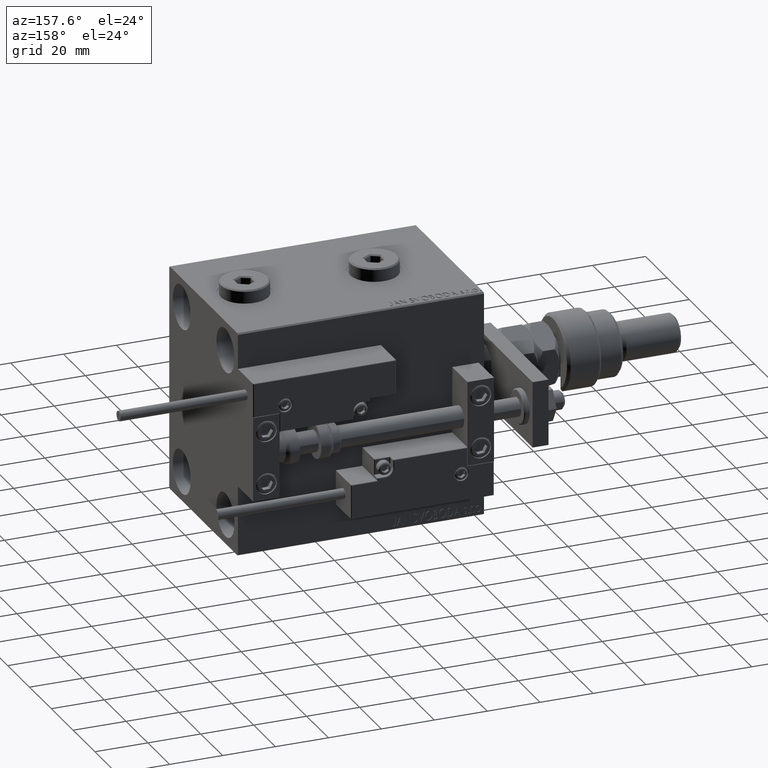
[diagram: clean part render]
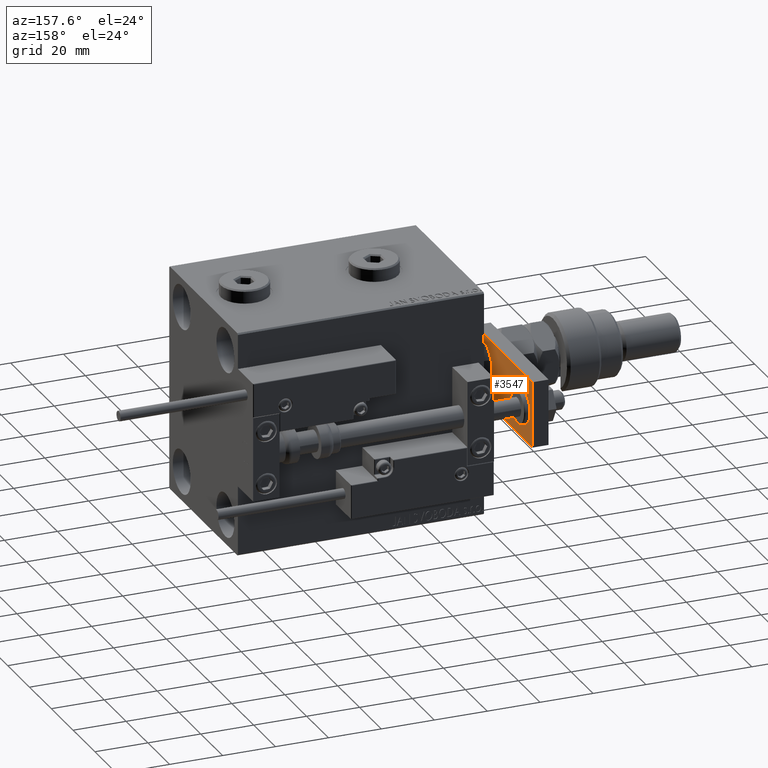
[diagram: same view with one face highlighted and labeled with its STEP entity id]
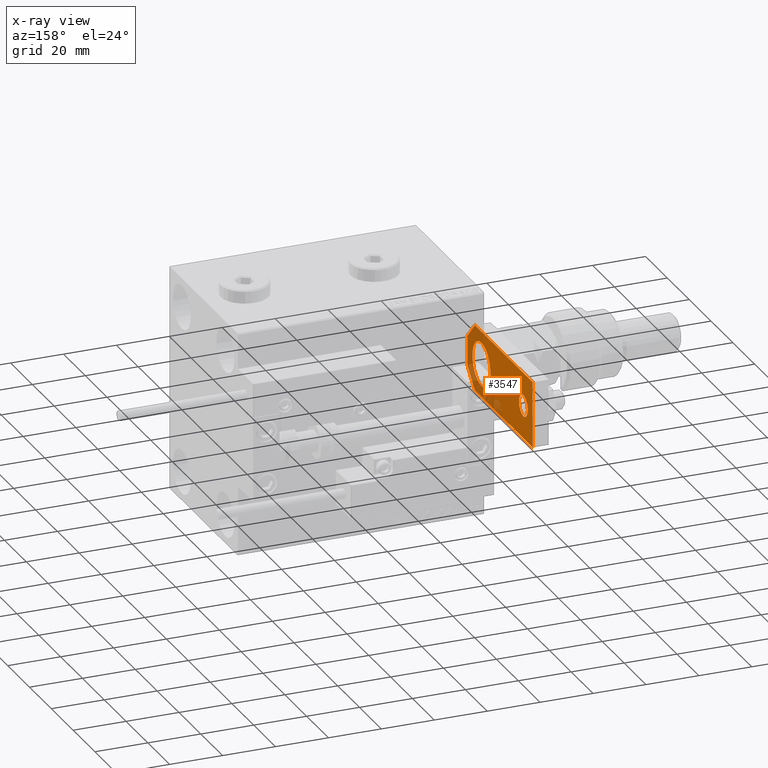
[diagram: x-ray of the same camera — body ghosted, the highlighted face saturated]
A machine part, auxiliary view. The second image highlights one B-rep face of the part: STEP entity #3547.
The next image is the same camera in x-ray: the body ghosted, the highlighted face saturated — about 25% of this face is hidden behind the body in this view.
In plain terms, the highlighted planar face has unit normal (-1, 0, 0).
Its self-contained STEP definition (entity closure, byte-faithful):
#515 = VERTEX_POINT ( 'NONE', #52405 ) ;
#2166 = EDGE_LOOP ( 'NONE', ( #26805, #9328, #3336, #47118, #18112, #44741 ) ) ;
#3336 = ORIENTED_EDGE ( 'NONE', *, *, #50864, .F. ) ;
#3547 = ADVANCED_FACE ( 'NONE', ( #32442, #49216, #45920 ), #45107, .F. ) ;
#3805 = EDGE_CURVE ( 'NONE', #45711, #31554, #12297, .T. ) ;
#5051 = ORIENTED_EDGE ( 'NONE', *, *, #52866, .T. ) ;
#7427 = DIRECTION ( 'NONE',  ( -0.000000000000000000, 0.000000000000000000, 1.000000000000000000 ) ) ;
#9328 = ORIENTED_EDGE ( 'NONE', *, *, #41996, .T. ) ;
#9504 = VERTEX_POINT ( 'NONE', #36668 ) ;
#10548 = LINE ( 'NONE', #18277, #44268 ) ;
#10897 = CARTESIAN_POINT ( 'NONE',  ( -1.432611055310774642E-16, 51.50000000000000000, 0.000000000000000000 ) ) ;
#11584 = LINE ( 'NONE', #49535, #14589 ) ;
#12059 = ORIENTED_EDGE ( 'NONE', *, *, #48016, .T. ) ;
#12297 = LINE ( 'NONE', #50241, #49398 ) ;
#12738 = DIRECTION ( 'NONE',  ( 1.000000000000000000, 0.000000000000000000, 0.000000000000000000 ) ) ;
#13822 = CIRCLE ( 'NONE', #21763, 4.000000000000000888 ) ;
#13922 = VERTEX_POINT ( 'NONE', #42228 ) ;
#14086 = CARTESIAN_POINT ( 'NONE',  ( 5.499999999999976907, 4.814824860968089633E-32, 0.000000000000000000 ) ) ;
#14195 = DIRECTION ( 'NONE',  ( -8.673617379884035472E-17, -1.000000000000000000, 0.000000000000000000 ) ) ;
#14589 = VECTOR ( 'NONE', #53097, 1000.000000000000000 ) ;
#14947 = DIRECTION ( 'NONE',  ( 1.000000000000000000, 0.000000000000000000, 0.000000000000000000 ) ) ;
#15524 = AXIS2_PLACEMENT_3D ( 'NONE', #27617, #48242, #14947 ) ;
#15602 = CIRCLE ( 'NONE', #34950, 4.000000000000000888 ) ;
#15713 = CARTESIAN_POINT ( 'NONE',  ( 4.000000000000000888, 51.50000000000000000, 0.000000000000000000 ) ) ;
#15844 = AXIS2_PLACEMENT_3D ( 'NONE', #22597, #39616, #23120 ) ;
#17602 = CARTESIAN_POINT ( 'NONE',  ( 12.50000000000000355, 60.00000000000000000, 0.000000000000000000 ) ) ;
#18112 = ORIENTED_EDGE ( 'NONE', *, *, #3805, .F. ) ;
#18277 = CARTESIAN_POINT ( 'NONE',  ( -5.500000000000010658, 4.814824860968089633E-32, 0.000000000000000000 ) ) ;
#19127 = CARTESIAN_POINT ( 'NONE',  ( -12.49999999999999822, 60.00000000000000000, 0.000000000000000000 ) ) ;
#19277 = EDGE_CURVE ( 'NONE', #515, #52969, #11584, .T. ) ;
#19778 = VERTEX_POINT ( 'NONE', #40661 ) ;
#21763 = AXIS2_PLACEMENT_3D ( 'NONE', #10897, #34858, #35122 ) ;
#22597 = CARTESIAN_POINT ( 'NONE',  ( -9.629649721936179265E-32, 12.99999999999999822, 0.000000000000000000 ) ) ;
#23120 = DIRECTION ( 'NONE',  ( 1.000000000000000000, 0.000000000000000000, 0.000000000000000000 ) ) ;
#24396 = VECTOR ( 'NONE', #48074, 999.9999999999998863 ) ;
#26182 = EDGE_LOOP ( 'NONE', ( #51524, #12059 ) ) ;
#26805 = ORIENTED_EDGE ( 'NONE', *, *, #19277, .F. ) ;
#26838 = CARTESIAN_POINT ( 'NONE',  ( -12.50000000000000355, 7.000000000000013323, 0.000000000000000000 ) ) ;
#27617 = CARTESIAN_POINT ( 'NONE',  ( -9.629649721936179265E-32, 12.99999999999999822, 0.000000000000000000 ) ) ;
#27782 = CIRCLE ( 'NONE', #15524, 8.250000000000000000 ) ;
#28929 = VERTEX_POINT ( 'NONE', #50292 ) ;
#29555 = VECTOR ( 'NONE', #14195, 1000.000000000000000 ) ;
#30292 = EDGE_CURVE ( 'NONE', #19778, #9504, #48299, .T. ) ;
#30378 = ORIENTED_EDGE ( 'NONE', *, *, #52126, .T. ) ;
#30506 = LINE ( 'NONE', #47553, #24396 ) ;
#31440 = DIRECTION ( 'NONE',  ( -1.000000000000000000, 0.000000000000000000, 0.000000000000000000 ) ) ;
#31554 = VERTEX_POINT ( 'NONE', #17602 ) ;
#31607 = CARTESIAN_POINT ( 'NONE',  ( 12.50000000000000355, 7.000000000000006217, 0.000000000000000000 ) ) ;
#32442 = FACE_OUTER_BOUND ( 'NONE', #2166, .T. ) ;
#32984 = CARTESIAN_POINT ( 'NONE',  ( 0.000000000000000000, 0.000000000000000000, 0.000000000000000000 ) ) ;
#33088 = CARTESIAN_POINT ( 'NONE',  ( -1.432611055310774642E-16, 51.50000000000000000, 0.000000000000000000 ) ) ;
#34458 = AXIS2_PLACEMENT_3D ( 'NONE', #32984, #7427, #45379 ) ;
#34858 = DIRECTION ( 'NONE',  ( 0.000000000000000000, 0.000000000000000000, 1.000000000000000000 ) ) ;
#34950 = AXIS2_PLACEMENT_3D ( 'NONE', #33088, #46565, #12738 ) ;
#35122 = DIRECTION ( 'NONE',  ( 1.000000000000000000, 0.000000000000000000, 0.000000000000000000 ) ) ;
#35901 = EDGE_LOOP ( 'NONE', ( #5051, #30378 ) ) ;
#36668 = CARTESIAN_POINT ( 'NONE',  ( 8.250000000000000000, 13.00000000000000000, 0.000000000000000000 ) ) ;
#39165 = DIRECTION ( 'NONE',  ( -0.7071067811865465735, 0.7071067811865485719, -0.000000000000000000 ) ) ;
#39232 = LINE ( 'NONE', #19127, #29555 ) ;
#39616 = DIRECTION ( 'NONE',  ( 0.000000000000000000, 0.000000000000000000, 1.000000000000000000 ) ) ;
#40661 = CARTESIAN_POINT ( 'NONE',  ( -8.250000000000000000, 12.99999999999999822, 0.000000000000000000 ) ) ;
#41996 = EDGE_CURVE ( 'NONE', #515, #46411, #10548, .T. ) ;
#42228 = CARTESIAN_POINT ( 'NONE',  ( -12.49999999999999822, 60.00000000000000000, 0.000000000000000000 ) ) ;
#44268 = VECTOR ( 'NONE', #39165, 1000.000000000000000 ) ;
#44741 = ORIENTED_EDGE ( 'NONE', *, *, #49682, .T. ) ;
#44751 = DIRECTION ( 'NONE',  ( 0.000000000000000000, 1.000000000000000000, 0.000000000000000000 ) ) ;
#45107 = PLANE ( 'NONE',  #34458 ) ;
#45379 = DIRECTION ( 'NONE',  ( 1.000000000000000000, 0.000000000000000000, 0.000000000000000000 ) ) ;
#45711 = VERTEX_POINT ( 'NONE', #31607 ) ;
#45920 = FACE_BOUND ( 'NONE', #26182, .T. ) ;
#46411 = VERTEX_POINT ( 'NONE', #26838 ) ;
#46565 = DIRECTION ( 'NONE',  ( 0.000000000000000000, 0.000000000000000000, 1.000000000000000000 ) ) ;
#47118 = ORIENTED_EDGE ( 'NONE', *, *, #52577, .F. ) ;
#47441 = LINE ( 'NONE', #47703, #54224 ) ;
#47553 = CARTESIAN_POINT ( 'NONE',  ( 12.50000000000000355, 7.000000000000006217, 0.000000000000000000 ) ) ;
#47703 = CARTESIAN_POINT ( 'NONE',  ( 12.50000000000000355, 60.00000000000000000, 0.000000000000000000 ) ) ;
#48016 = EDGE_CURVE ( 'NONE', #9504, #19778, #27782, .T. ) ;
#48074 = DIRECTION ( 'NONE',  ( -0.7071067811865486830, -0.7071067811865464625, -0.000000000000000000 ) ) ;
#48242 = DIRECTION ( 'NONE',  ( 0.000000000000000000, 0.000000000000000000, 1.000000000000000000 ) ) ;
#48299 = CIRCLE ( 'NONE', #15844, 8.250000000000000000 ) ;
#49126 = VERTEX_POINT ( 'NONE', #15713 ) ;
#49216 = FACE_BOUND ( 'NONE', #35901, .T. ) ;
#49398 = VECTOR ( 'NONE', #44751, 1000.000000000000000 ) ;
#49535 = CARTESIAN_POINT ( 'NONE',  ( -12.50000000000000355, 4.814824860968089633E-32, 0.000000000000000000 ) ) ;
#49682 = EDGE_CURVE ( 'NONE', #45711, #52969, #30506, .T. ) ;
#50241 = CARTESIAN_POINT ( 'NONE',  ( 12.50000000000000355, 4.814824860968089633E-32, 0.000000000000000000 ) ) ;
#50292 = CARTESIAN_POINT ( 'NONE',  ( -4.000000000000000888, 51.50000000000000000, 0.000000000000000000 ) ) ;
#50864 = EDGE_CURVE ( 'NONE', #13922, #46411, #39232, .T. ) ;
#51524 = ORIENTED_EDGE ( 'NONE', *, *, #30292, .T. ) ;
#52126 = EDGE_CURVE ( 'NONE', #49126, #28929, #13822, .T. ) ;
#52405 = CARTESIAN_POINT ( 'NONE',  ( -5.500000000000010658, 4.814824860968089633E-32, 0.000000000000000000 ) ) ;
#52577 = EDGE_CURVE ( 'NONE', #31554, #13922, #47441, .T. ) ;
#52866 = EDGE_CURVE ( 'NONE', #28929, #49126, #15602, .T. ) ;
#52969 = VERTEX_POINT ( 'NONE', #14086 ) ;
#53097 = DIRECTION ( 'NONE',  ( 1.000000000000000000, 0.000000000000000000, 0.000000000000000000 ) ) ;
#54224 = VECTOR ( 'NONE', #31440, 1000.000000000000000 ) ;